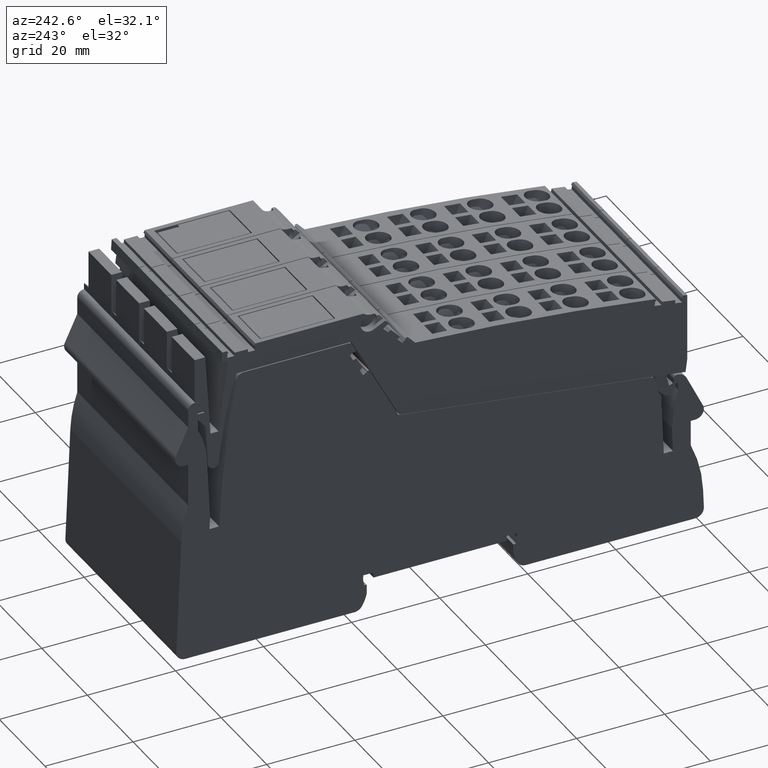
[diagram: clean part render]
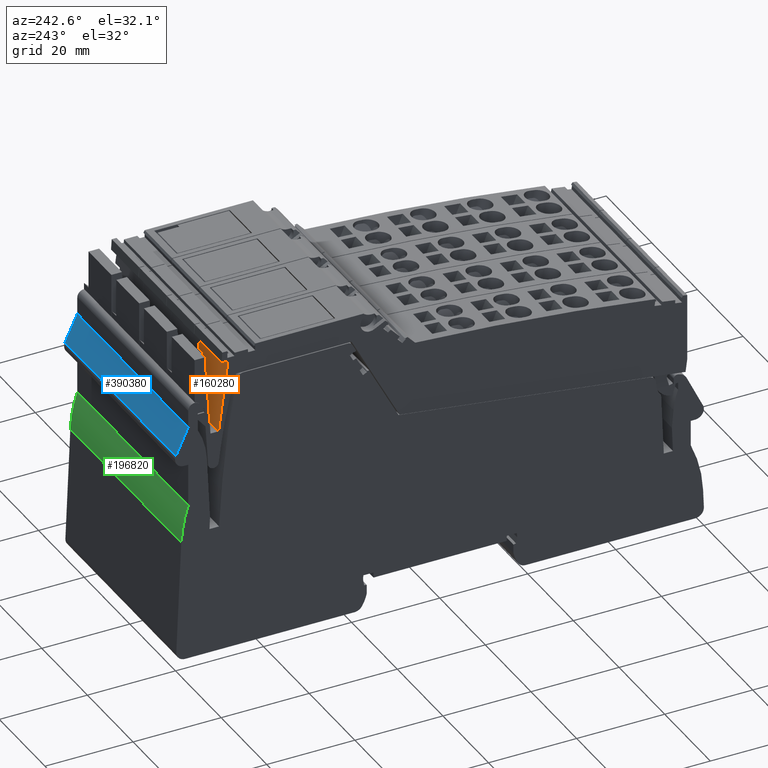
[diagram: same view with three faces highlighted in distinct colors, each labeled with its STEP entity id]
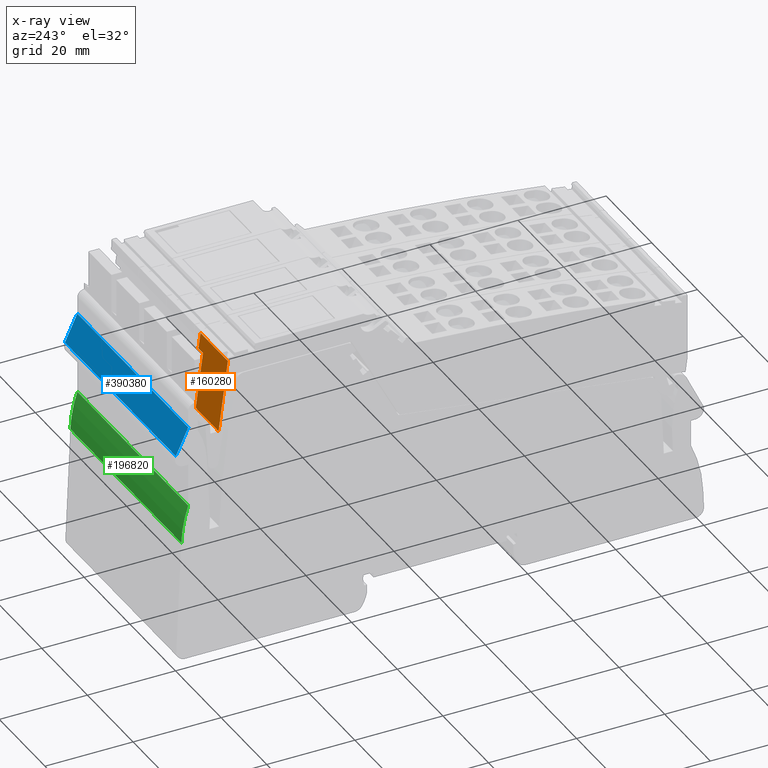
[diagram: x-ray of the same camera — body ghosted, the three highlighted faces saturated]
A machine part, auxiliary view with three faces highlighted in distinct colors.
The next image is the same camera in x-ray (body ghosted, the three faces saturated) — at least one of them is partly hidden behind the body in this view.
Their STEP definitions:

[orange] entity #160280 — the highlighted planar face has unit normal (0, -0.9914, -0.1305).
#3600=CARTESIAN_POINT('',(119.632513868136,65.9866197234248,-47.425));
#3610=VERTEX_POINT('',#3600);
#3640=CARTESIAN_POINT('',(128.319817162075,-1.4210854715202E-14,-47.425)
);
#3650=DIRECTION('',(0.130526192220052,-0.99144486137381,0.));
#3660=VECTOR('',#3650,1.);
#3670=LINE('',#3640,#3660);
#3680=CARTESIAN_POINT('',(117.512908656979,82.0866197234256,-47.425));
#3690=VERTEX_POINT('',#3680);
#3700=EDGE_CURVE('',#3690,#3610,#3670,.T.);
#6730=CARTESIAN_POINT('',(117.512908656979,82.0866197234256,-35.425));
#6740=VERTEX_POINT('',#6730);
#6770=CARTESIAN_POINT('',(128.319817162075,-1.4210854715202E-14,-35.425)
);
#6780=DIRECTION('',(0.130526192220052,-0.99144486137381,0.));
#6790=VECTOR('',#6780,1.);
#6800=LINE('',#6770,#6790);
#6810=CARTESIAN_POINT('',(117.973692398535,78.5866197234246,-35.425));
#6820=VERTEX_POINT('',#6810);
#6830=EDGE_CURVE('',#6740,#6820,#6800,.T.);
#149570=CARTESIAN_POINT('',(117.973692398535,78.5866197234246,-37.425));
#149580=VERTEX_POINT('',#149570);
#149610=CARTESIAN_POINT('',(118.59066468609,73.900249932795,-37.425));
#149620=DIRECTION('',(-0.130526192220052,0.99144486137381,0.));
#149630=VECTOR('',#149620,1.);
#149640=LINE('',#149610,#149630);
#149650=CARTESIAN_POINT('',(119.632513868136,65.9866197234249,-37.425));
#149660=VERTEX_POINT('',#149650);
#149670=EDGE_CURVE('',#149660,#149580,#149640,.T.);
#155730=CARTESIAN_POINT('',(117.973692398535,78.5866197234246,0.));
#155740=DIRECTION('',(8.85927774418128E-33,0.,-1.));
#155750=VECTOR('',#155740,1.);
#155760=LINE('',#155730,#155750);
#155770=EDGE_CURVE('',#6820,#149580,#155760,.T.);
#159920=CARTESIAN_POINT('',(119.632513868136,65.9866197234248,0.));
#159930=DIRECTION('',(-8.85927774418128E-33,6.90131940202395E-49,1.));
#159940=VECTOR('',#159930,1.);
#159950=LINE('',#159920,#159940);
#159960=EDGE_CURVE('',#3610,#149660,#159950,.T.);
#160100=CARTESIAN_POINT('',(117.512908656979,82.0866197234256,-35.425));
#160110=DIRECTION('',(-0.99144486137381,-0.130526192220052,
-8.7834853949519E-33));
#160120=DIRECTION('',(-0.130526192220052,0.99144486137381,0.));
#160130=AXIS2_PLACEMENT_3D('',#160100,#160110,#160120);
#160140=PLANE('',#160130);
#160150=ORIENTED_EDGE('',*,*,#149670,.F.);
#160160=ORIENTED_EDGE('',*,*,#155770,.T.);
#160170=ORIENTED_EDGE('',*,*,#6830,.T.);
#160180=CARTESIAN_POINT('',(117.512908656979,82.0866197234256,0.));
#160190=DIRECTION('',(-8.85927774418128E-33,0.,1.));
#160200=VECTOR('',#160190,1.);
#160210=LINE('',#160180,#160200);
#160220=EDGE_CURVE('',#3690,#6740,#160210,.T.);
#160230=ORIENTED_EDGE('',*,*,#160220,.T.);
#160240=ORIENTED_EDGE('',*,*,#3700,.F.);
#160250=ORIENTED_EDGE('',*,*,#159960,.F.);
#160260=EDGE_LOOP('',(#160250,#160240,#160230,#160170,#160160,#160150));
#160270=FACE_OUTER_BOUND('',#160260,.T.);
#160280=ADVANCED_FACE('',(#160270),#160140,.F.);

[blue] entity #390380 — the highlighted planar face has unit normal (0, -0.9063, -0.4226).
#174670=CARTESIAN_POINT('',(293.72862020886,-8.07736800997932,36.45));
#174680=VERTEX_POINT('',#174670);
#174710=CARTESIAN_POINT('',(307.010764684658,-36.5610187575393,36.45));
#174720=DIRECTION('',(-0.422618261740675,0.906307787036661,0.));
#174730=VECTOR('',#174720,1.);
#174740=LINE('',#174710,#174730);
#174750=CARTESIAN_POINT('',(296.541235782933,-14.1090415733126,36.45));
#174760=VERTEX_POINT('',#174750);
#174770=EDGE_CURVE('',#174760,#174680,#174740,.T.);
#183580=CARTESIAN_POINT('',(296.541235782933,-14.1090415733126,-12.15));
#183590=VERTEX_POINT('',#183580);
#183620=CARTESIAN_POINT('',(307.010764684658,-36.5610187575393,-12.15));
#183630=DIRECTION('',(-0.422618261740675,0.906307787036661,0.));
#183640=VECTOR('',#183630,1.);
#183650=LINE('',#183620,#183640);
#183660=CARTESIAN_POINT('',(293.72862020886,-8.07736800997932,-12.15));
#183670=VERTEX_POINT('',#183660);
#183680=EDGE_CURVE('',#183590,#183670,#183650,.T.);
#190480=CARTESIAN_POINT('',(296.541235782933,-14.1090415733126,
6.14999999999999));
#190490=DIRECTION('',(0.,0.,1.));
#190500=VECTOR('',#190490,1.);
#190510=LINE('',#190480,#190500);
#190520=EDGE_CURVE('',#183590,#174760,#190510,.T.);
#390090=CARTESIAN_POINT('',(293.72862020886,-8.07736800997932,-12.15));
#390100=DIRECTION('',(0.,0.,1.));
#390110=VECTOR('',#390100,1.);
#390120=LINE('',#390090,#390110);
#390130=EDGE_CURVE('',#183670,#174680,#390120,.T.);
#390270=CARTESIAN_POINT('',(296.541235782933,-14.1090415733126,
6.14999999999999));
#390280=DIRECTION('',(-0.906307787036661,-0.422618261740675,0.));
#390290=DIRECTION('',(0.422618261740675,-0.906307787036661,0.));
#390300=AXIS2_PLACEMENT_3D('',#390270,#390280,#390290);
#390310=PLANE('',#390300);
#390320=ORIENTED_EDGE('',*,*,#183680,.T.);
#390330=ORIENTED_EDGE('',*,*,#190520,.F.);
#390340=ORIENTED_EDGE('',*,*,#174770,.F.);
#390350=ORIENTED_EDGE('',*,*,#390130,.T.);
#390360=EDGE_LOOP('',(#390350,#390340,#390330,#390320));
#390370=FACE_OUTER_BOUND('',#390360,.T.);
#390380=ADVANCED_FACE('',(#390370),#390310,.F.);

[green] entity #196820 — the highlighted cylindrical surface (partial cylindrical patch) has radius 30 mm, axis along (1, 0, 0).
#175000=CARTESIAN_POINT('',(293.72862020886,-26.6633289582249,36.45));
#175010=VERTEX_POINT('',#175000);
#175040=CARTESIAN_POINT('',(265.338905386256,-36.3599310584231,36.45));
#175050=DIRECTION('',(0.,0.,1.));
#175060=DIRECTION('',(1.,-1.05193631583234E-14,0.));
#175070=AXIS2_PLACEMENT_3D('',#175040,#175050,#175060);
#175080=CIRCLE('',#175070,29.9999999999717);
#175090=CARTESIAN_POINT('',(295.310352033684,-35.0513494374696,36.45));
#175100=VERTEX_POINT('',#175090);
#175110=EDGE_CURVE('',#175100,#175010,#175080,.T.);
#183240=CARTESIAN_POINT('',(295.310352033684,-35.0513494374696,-12.15));
#183250=VERTEX_POINT('',#183240);
#183280=CARTESIAN_POINT('',(265.338905386256,-36.3599310584231,-12.15));
#183290=DIRECTION('',(0.,0.,1.));
#183300=DIRECTION('',(1.,-1.05193631583234E-14,0.));
#183310=AXIS2_PLACEMENT_3D('',#183280,#183290,#183300);
#183320=CIRCLE('',#183310,29.9999999999717);
#183330=CARTESIAN_POINT('',(293.72862020886,-26.6633289582249,-12.15));
#183340=VERTEX_POINT('',#183330);
#183350=EDGE_CURVE('',#183250,#183340,#183320,.T.);
#196500=CARTESIAN_POINT('',(295.310352033684,-35.0513494374696,
6.14999999999999));
#196510=DIRECTION('',(0.,0.,1.));
#196520=VECTOR('',#196510,1.);
#196530=LINE('',#196500,#196520);
#196540=EDGE_CURVE('',#183250,#175100,#196530,.T.);
#196660=CARTESIAN_POINT('',(265.338905386256,-36.3599310584231,
6.14999999999999));
#196670=DIRECTION('',(0.,0.,1.));
#196680=DIRECTION('',(1.,-1.05193631583234E-14,0.));
#196690=AXIS2_PLACEMENT_3D('',#196660,#196670,#196680);
#196700=CYLINDRICAL_SURFACE('',#196690,29.9999999999717);
#196710=ORIENTED_EDGE('',*,*,#183350,.T.);
#196720=ORIENTED_EDGE('',*,*,#196540,.F.);
#196730=ORIENTED_EDGE('',*,*,#175110,.F.);
#196740=CARTESIAN_POINT('',(293.72862020886,-26.6633289582249,
6.14999999999999));
#196750=DIRECTION('',(0.,0.,1.));
#196760=VECTOR('',#196750,1.);
#196770=LINE('',#196740,#196760);
#196780=EDGE_CURVE('',#183340,#175010,#196770,.T.);
#196790=ORIENTED_EDGE('',*,*,#196780,.T.);
#196800=EDGE_LOOP('',(#196790,#196730,#196720,#196710));
#196810=FACE_OUTER_BOUND('',#196800,.T.);
#196820=ADVANCED_FACE('',(#196810),#196700,.T.);